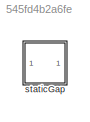
MODEL slx_545fd4b2a6fe
KIND model
CONFIG AbsTol = auto
CONFIG EnableMultiTasking = off
CONFIG FixedStep = auto
CONFIG MaxStep = auto
CONFIG MinStep = auto
CONFIG RelTol = 1e-3
CONFIG SampleTimeConstraint = Unconstrained
CONFIG SolverName = VariableStepAuto
CONFIG StartTime = 0.0
CONFIG StopTime = 10.0
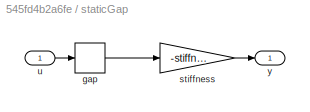
BLOCK [SubSystem] staticGap
  Ports = [1, 1]
  RequestExecContextInheritance = off
BLOCK [DeadZone] staticGap/gap
  LowerValue = -freeplay
  UpperValue = freeplay
BLOCK [Gain] staticGap/stiffness
  Gain = -stiffness
BLOCK [Inport] staticGap/u
BLOCK [Outport] staticGap/y
LINE staticGap/gap:1 -> staticGap/stiffness:1
LINE staticGap/stiffness:1 -> staticGap/y:1
LINE staticGap/u:1 -> staticGap/gap:1
